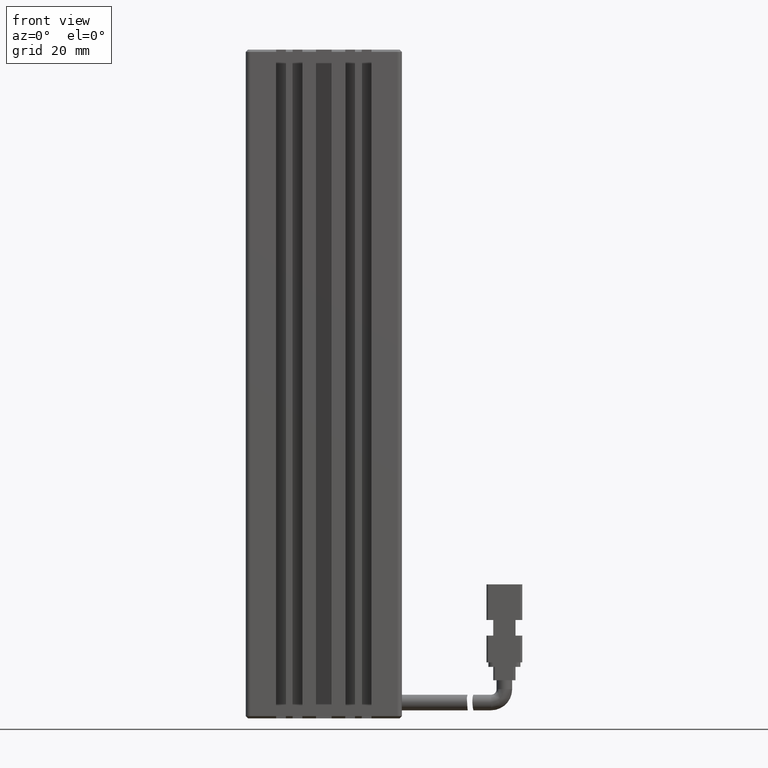
[diagram: clean part render]
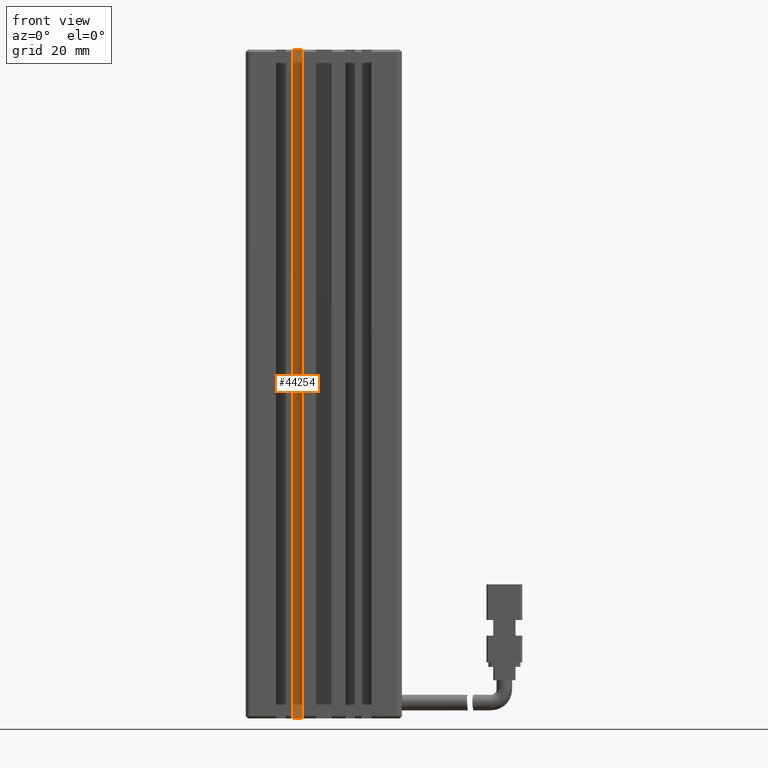
[diagram: same view with one face highlighted and labeled with its STEP entity id]
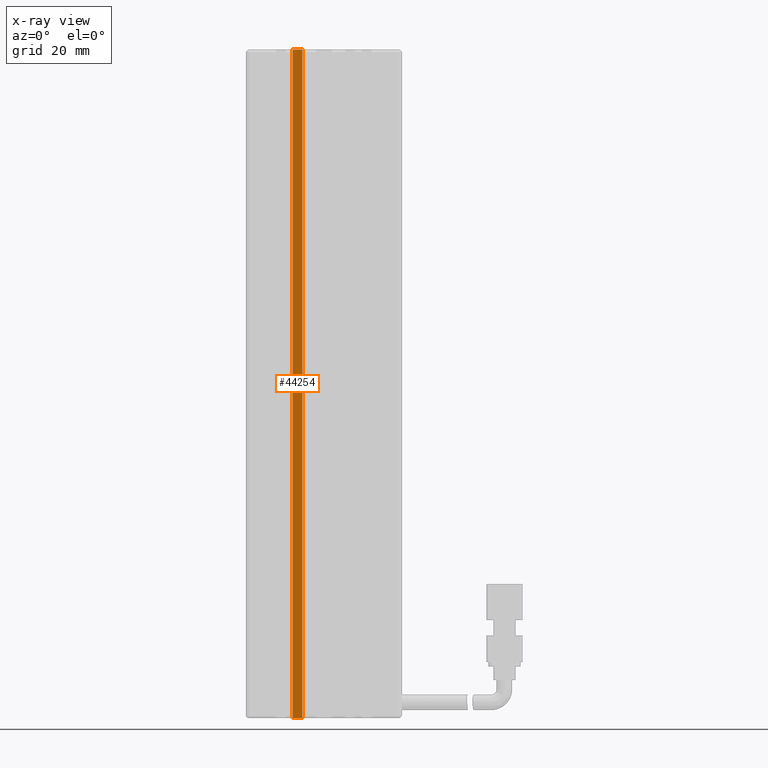
[diagram: x-ray of the same camera — body ghosted, the highlighted face saturated]
A machine part, front view. The second image highlights one B-rep face of the part: STEP entity #44254.
The next image is the same camera in x-ray: the body ghosted, the highlighted face saturated — about 0% of this face is hidden behind the body in this view.
In plain terms, the highlighted planar face has unit normal (-0, 1, 0).
Its self-contained STEP definition (entity closure, byte-faithful):
#5228 = VERTEX_POINT ( 'NONE', #21407 ) ;
#6537 = AXIS2_PLACEMENT_3D ( 'NONE', #31825, #20790, #59090 ) ;
#7565 = LINE ( 'NONE', #29255, #26372 ) ;
#7760 = EDGE_CURVE ( 'NONE', #20902, #61809, #7565, .T. ) ;
#8547 = VECTOR ( 'NONE', #28474, 1000.000000000000000 ) ;
#10897 = ORIENTED_EDGE ( 'NONE', *, *, #68058, .F. ) ;
#11482 = LINE ( 'NONE', #49835, #13222 ) ;
#13222 = VECTOR ( 'NONE', #60467, 1000.000000000000000 ) ;
#15357 = PLANE ( 'NONE',  #6537 ) ;
#16673 = ORIENTED_EDGE ( 'NONE', *, *, #7760, .F. ) ;
#18200 = CARTESIAN_POINT ( 'NONE',  ( 33.92537974683543200, 16.49073232304837000, -40.00000000000000700 ) ) ;
#20790 = DIRECTION ( 'NONE',  ( -7.885106708985484100E-016, 1.000000000000000000, 0.0000000000000000000 ) ) ;
#20902 = VERTEX_POINT ( 'NONE', #48814 ) ;
#21407 = CARTESIAN_POINT ( 'NONE',  ( 33.92537974683543200, 16.49073232304837000, -190.0000000000000000 ) ) ;
#26372 = VECTOR ( 'NONE', #62513, 1000.000000000000000 ) ;
#28193 = CARTESIAN_POINT ( 'NONE',  ( 33.92537974683543200, 16.49073232304837000, -40.00000000000000700 ) ) ;
#28474 = DIRECTION ( 'NONE',  ( 1.000000000000000000, 0.0000000000000000000, 0.0000000000000000000 ) ) ;
#28820 = LINE ( 'NONE', #28193, #70710 ) ;
#29255 = CARTESIAN_POINT ( 'NONE',  ( 36.12537974683543500, 16.49073232304837000, -40.00000000000000700 ) ) ;
#30415 = EDGE_CURVE ( 'NONE', #5228, #43998, #28820, .T. ) ;
#31825 = CARTESIAN_POINT ( 'NONE',  ( 40.92537974683541800, 16.49073232304837300, -40.00000000000000700 ) ) ;
#34082 = EDGE_LOOP ( 'NONE', ( #16673, #10897, #49121, #50829 ) ) ;
#36740 = LINE ( 'NONE', #55693, #8547 ) ;
#42817 = FACE_OUTER_BOUND ( 'NONE', #34082, .T. ) ;
#43998 = VERTEX_POINT ( 'NONE', #18200 ) ;
#44254 = ADVANCED_FACE ( 'NONE', ( #42817 ), #15357, .F. ) ;
#48814 = CARTESIAN_POINT ( 'NONE',  ( 36.12537974683543500, 16.49073232304837000, -40.00000000000000700 ) ) ;
#49121 = ORIENTED_EDGE ( 'NONE', *, *, #30415, .F. ) ;
#49835 = CARTESIAN_POINT ( 'NONE',  ( 40.92537974683542500, 16.49073232304836600, -40.00000000000000700 ) ) ;
#50829 = ORIENTED_EDGE ( 'NONE', *, *, #64449, .T. ) ;
#55693 = CARTESIAN_POINT ( 'NONE',  ( 40.92537974683542500, 16.49073232304836600, -190.0000000000000000 ) ) ;
#57126 = DIRECTION ( 'NONE',  ( 0.0000000000000000000, 0.0000000000000000000, 1.000000000000000000 ) ) ;
#58023 = CARTESIAN_POINT ( 'NONE',  ( 36.12537974683543500, 16.49073232304837000, -190.0000000000000000 ) ) ;
#59090 = DIRECTION ( 'NONE',  ( -1.000000000000000000, -7.885106708985484100E-016, 0.0000000000000000000 ) ) ;
#60467 = DIRECTION ( 'NONE',  ( 1.000000000000000000, 0.0000000000000000000, 0.0000000000000000000 ) ) ;
#61809 = VERTEX_POINT ( 'NONE', #58023 ) ;
#62513 = DIRECTION ( 'NONE',  ( -0.0000000000000000000, -0.0000000000000000000, -1.000000000000000000 ) ) ;
#64449 = EDGE_CURVE ( 'NONE', #5228, #61809, #36740, .T. ) ;
#68058 = EDGE_CURVE ( 'NONE', #43998, #20902, #11482, .T. ) ;
#70710 = VECTOR ( 'NONE', #57126, 1000.000000000000000 ) ;